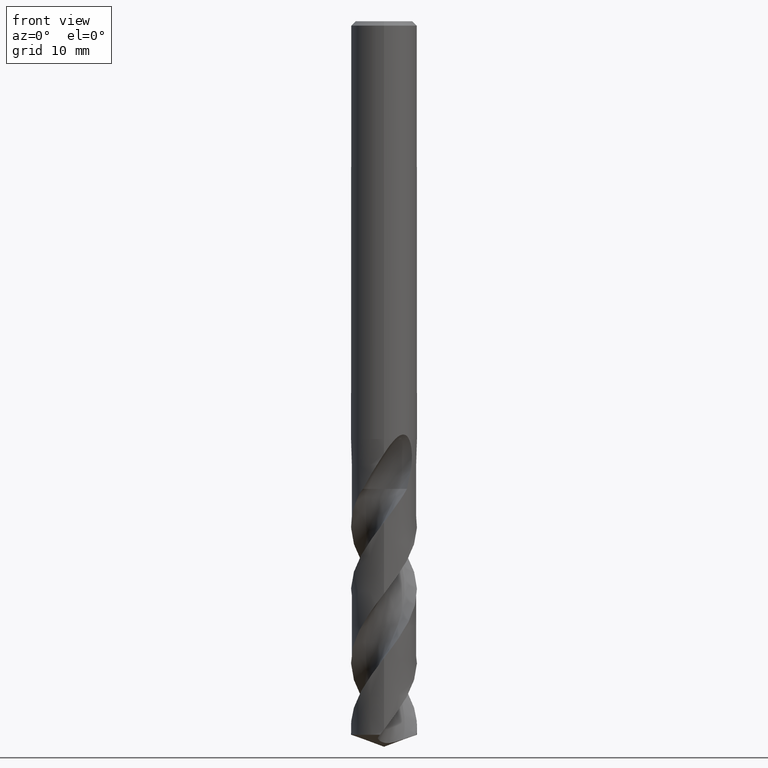
[diagram: clean part render]
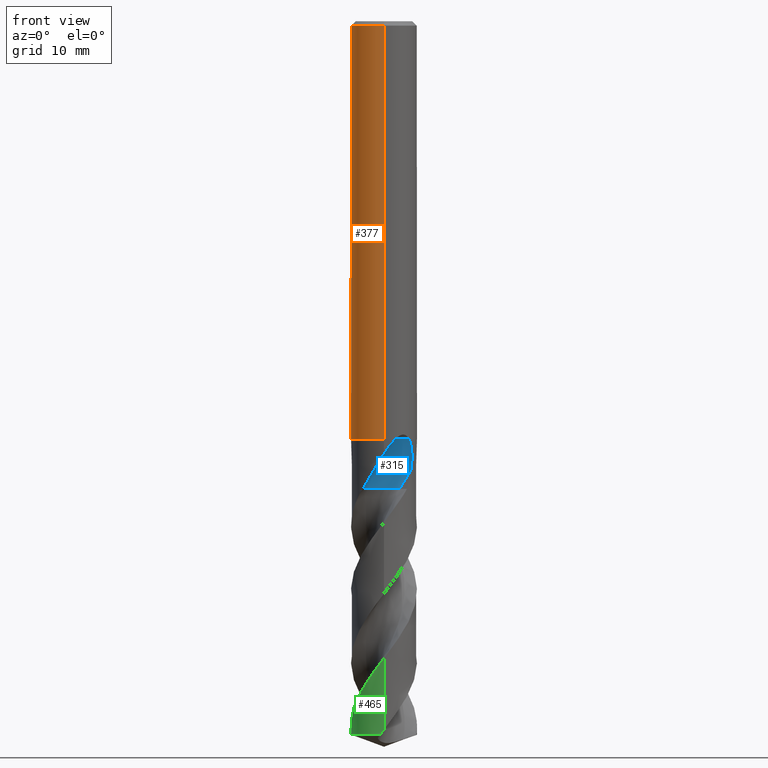
[diagram: same view with three faces highlighted in distinct colors, each labeled with its STEP entity id]
A machine part, front view with three faces highlighted in distinct colors.
Their STEP definitions:

[orange] entity #377 — the highlighted cylindrical surface (edge-blend (fillet) strip) has radius 3 mm, axis along (-0, -0, 1).
#281=VERTEX_POINT('',#742);
#331=VERTEX_POINT('',#798);
#341=VERTEX_POINT('',#809);
#347=VERTEX_POINT('',#815);
#369=EDGE_CURVE('',#547,#281,#837,.T.);
#373=VERTEX_POINT('',#842);
#377=ADVANCED_FACE('',(#846),#847,.T.);
#385=EDGE_CURVE('',#513,#519,#855,.T.);
#389=EDGE_CURVE('',#671,#547,#860,.T.);
#415=VERTEX_POINT('',#888);
#427=VERTEX_POINT('',#901);
#453=EDGE_CURVE('',#415,#519,#929,.T.);
#461=EDGE_CURVE('',#341,#503,#937,.T.);
#503=VERTEX_POINT('',#985);
#505=EDGE_CURVE('',#503,#645,#987,.T.);
#511=EDGE_CURVE('',#281,#373,#993,.T.);
#513=VERTEX_POINT('',#995);
#519=VERTEX_POINT('',#1001);
#521=EDGE_CURVE('',#373,#331,#1003,.T.);
#547=VERTEX_POINT('',#1031);
#553=EDGE_CURVE('',#331,#347,#1038,.T.);
#613=EDGE_CURVE('',#513,#347,#1103,.T.);
#617=EDGE_CURVE('',#415,#655,#1108,.T.);
#629=EDGE_CURVE('',#655,#341,#1121,.T.);
#645=VERTEX_POINT('',#1139);
#655=VERTEX_POINT('',#1149);
#671=VERTEX_POINT('',#1169);
#675=EDGE_CURVE('',#645,#427,#1173,.T.);
#679=EDGE_CURVE('',#427,#671,#1177,.T.);
#742=CARTESIAN_POINT('',(-7.24619892846042E-016,3.0,-32.7128911336578));
#798=CARTESIAN_POINT('',(-2.46407913303377E-016,3.0,-34.0310253601033));
#809=CARTESIAN_POINT('',(0.0,3.0,-0.399999999999999));
#815=CARTESIAN_POINT('',(-3.67381906146713E-016,3.0,-38.0));
#837=LINE('',#2200,#2201);
#842=CARTESIAN_POINT('',(-1.337052752443,2.68557069115386,-33.3720803908795));
#846=FACE_OUTER_BOUND('',#2288,.T.);
#847=CYLINDRICAL_SURFACE('',#2289,3.0);
#855=B_SPLINE_CURVE_WITH_KNOTS('',3,(#2299,#2300,#2301,#2302,#2303,#2304,#2305,#2306,#2307,#2308,#2309,#2310),.UNSPECIFIED.,.F.,.F.,(4,2,2,2,2,4),(0.0,0.566571146386704,0.910751921865405,1.1936802103784,1.47913200193667,1.78513918168509),.UNSPECIFIED.);
#860=B_SPLINE_CURVE_WITH_KNOTS('',3,(#2316,#2317,#2318,#2319,#2320,#2321,#2322,#2323,#2324,#2325,#2326,#2327,#2328,#2329),.UNSPECIFIED.,.F.,.F.,(4,2,2,2,2,2,4),(3.16026050654945,3.61086409539206,4.06146768423468,4.51207127307729,4.95991823802074,5.40776520296419,5.86282890530594),.UNSPECIFIED.);
#888=CARTESIAN_POINT('',(3.67381906146713E-016,-3.0,-38.0));
#901=CARTESIAN_POINT('',(-0.562333990228013,2.94682549253162,-31.3171221986971));
#929=CIRCLE('',#2660,3.0);
#937=LINE('',#2808,#2809);
#985=CARTESIAN_POINT('',(-1.20768269592175E-015,3.0,-32.0232688117743));
#987=B_SPLINE_CURVE_WITH_KNOTS('',3,(#3192,#3193,#3194,#3195,#3196,#3197,#3198,#3199,#3200,#3201,#3202,#3203,#3204,#3205,#3206,#3207,#3208,#3209,#3210,#3211,#3212,#3213,#3214,#3215,#3216,#3217,#3218),.UNSPECIFIED.,.F.,.F.,(4,2,3,2,2,2,2,2,2,2,2,2,4),(-0.54422824842136,-0.27211412421068,0.0,0.272114124210678,0.544228248421357,0.817906359646673,1.09158447087199,1.36255924571499,1.63353402055798,1.90530456554772,2.17707511053746,2.4488456555272,2.72061620051693),.UNSPECIFIED.);
#993=ELLIPSE('',#3229,3.34478529612858,3.0);
#995=CARTESIAN_POINT('',(-1.02400952250009,2.81982348699863,-38.0));
#1001=CARTESIAN_POINT('',(-2.27220909638314,1.95884298051521,-38.0));
#1003=B_SPLINE_CURVE_WITH_KNOTS('',3,(#3240,#3241,#3242,#3243,#3244,#3245,#3246,#3247,#3248,#3249,#3250,#3251,#3252,#3253,#3254,#3255),.UNSPECIFIED.,.F.,.F.,(4,2,2,2,2,2,2,4),(5.66023402257373,6.29060333517104,6.60504483258975,6.91948633000846,7.23392782742717,7.54836932484587,7.86141901111221,8.17446869737855),.UNSPECIFIED.);
#1031=CARTESIAN_POINT('',(-2.06254272401587E-016,3.0,-32.5000801551881));
#1038=LINE('',#3444,#3445);
#1103=CIRCLE('',#4691,3.0);
#1108=LINE('',#4697,#4698);
#1121=CIRCLE('',#4718,3.0);
#1139=CARTESIAN_POINT('',(-0.486378944383045,2.96031003823262,-31.6432837483006));
#1149=CARTESIAN_POINT('',(3.67381906146713E-016,-3.0,-0.399999999999999));
#1169=CARTESIAN_POINT('',(-1.0350734039088,2.81578107254819,-31.3171221986971));
#1173=B_SPLINE_CURVE_WITH_KNOTS('',3,(#4821,#4822,#4823,#4824,#4825,#4826,#4827,#4828,#4829,#4830,#4831,#4832,#4833,#4834,#4835,#4836,#4837,#4838,#4839,#4840,#4841,#4842,#4843,#4844,#4845,#4846,#4847),.UNSPECIFIED.,.F.,.F.,(4,2,3,2,2,2,2,2,2,2,2,2,4),(-0.54422824842136,-0.27211412421068,0.0,0.272114124210678,0.544228248421357,0.817906359646673,1.09158447087199,1.36255924571499,1.63353402055798,1.90530456554772,2.17707511053746,2.4488456555272,2.72061620051693),.UNSPECIFIED.);
#1177=CIRCLE('',#4852,3.0);
#2200=CARTESIAN_POINT('',(-3.67381906146713E-016,3.0,-37.0));
#2201=VECTOR('',#5076,1.0);
#2288=EDGE_LOOP('',(#5087,#5088,#5089,#5090,#5091,#5092,#5093,#5094,#5095,#5096,#5097,#5098,#5099,#5100));
#2289=AXIS2_PLACEMENT_3D('',#5101,#5102,#5103);
#2299=CARTESIAN_POINT('',(-1.02400952250009,2.81982348699863,-38.0));
#2300=CARTESIAN_POINT('',(-1.15466996109985,2.77237458320834,-37.8721585505644));
#2301=CARTESIAN_POINT('',(-1.30089955384538,2.70879676929084,-37.7524070752748));
#2302=CARTESIAN_POINT('',(-1.54419946884866,2.57419682473318,-37.6315133844407));
#2303=CARTESIAN_POINT('',(-1.63831877063901,2.515749009101,-37.602162333192));
#2304=CARTESIAN_POINT('',(-1.80848812215519,2.39545619521912,-37.5952936335916));
#2305=CARTESIAN_POINT('',(-1.88071099267584,2.33896646251829,-37.6096883794318));
#2306=CARTESIAN_POINT('',(-2.01596771167185,2.22347758630175,-37.6734029299133));
#2307=CARTESIAN_POINT('',(-2.07565875844848,2.16729682246501,-37.7214807300166));
#2308=CARTESIAN_POINT('',(-2.18430978789275,2.05794834019253,-37.8436944219673));
#2309=CARTESIAN_POINT('',(-2.2318320178391,2.00567938652924,-37.919016194777));
#2310=CARTESIAN_POINT('',(-2.27220909638314,1.95884298051521,-38.0));
#2316=CARTESIAN_POINT('',(-0.944028754947609,2.84759718180646,-30.87109591768));
#2317=CARTESIAN_POINT('',(-1.00479265183033,2.82745289805341,-31.0168616503562));
#2318=CARTESIAN_POINT('',(-1.03510901790186,2.81576798068631,-31.1761006644519));
#2319=CARTESIAN_POINT('',(-1.03510901790186,2.81576798068631,-31.4765030570137));
#2320=CARTESIAN_POINT('',(-1.00479265183033,2.82745289805341,-31.6357420711094));
#2321=CARTESIAN_POINT('',(-0.88326485806506,2.86774146555976,-31.9272735364618));
#2322=CARTESIAN_POINT('',(-0.792109261194285,2.89554580131596,-32.0596991578702));
#2323=CARTESIAN_POINT('',(-0.582867737485067,2.94478284423827,-32.2682275153448));
#2324=CARTESIAN_POINT('',(-0.450640829386874,2.96956027684007,-32.358826497016));
#2325=CARTESIAN_POINT('',(-0.159819744133953,2.99930375982357,-32.4794282329782));
#2326=CARTESIAN_POINT('',(-0.00114290335869099,3.00371168811663,-32.5093686300866));
#2327=CARTESIAN_POINT('',(0.299461057962613,2.98886806232847,-32.5093686300866));
#2328=CARTESIAN_POINT('',(0.459264276215476,2.96836791045541,-32.4785566268234));
#2329=CARTESIAN_POINT('',(0.604975334200916,2.93836771779988,-32.4175314011172));
#2660=AXIS2_PLACEMENT_3D('',#5192,#5193,#5194);
#2808=CARTESIAN_POINT('',(-3.67381906146713E-016,3.0,-37.0));
#2809=VECTOR('',#5195,1.0);
#3192=CARTESIAN_POINT('',(0.665621182276714,2.92522622060321,-30.8140957881762));
#3193=CARTESIAN_POINT('',(0.728850563417096,2.91083867849353,-30.877518087557));
#3194=CARTESIAN_POINT('',(0.783900459387161,2.89602337967411,-30.9578702196133));
#3195=CARTESIAN_POINT('',(0.857188692916628,2.87518328740958,-31.1345580124299));
#3196=CARTESIAN_POINT('',(0.875400981188567,2.86943777108584,-31.2309373045166));
#3197=CARTESIAN_POINT('',(0.875400981188567,2.86943777108584,-31.3216420125868));
#3198=CARTESIAN_POINT('',(0.875400981188567,2.86943777108584,-31.412346720657));
#3199=CARTESIAN_POINT('',(0.857188692916629,2.87518328740958,-31.5087260127437));
#3200=CARTESIAN_POINT('',(0.783900459387161,2.89602337967411,-31.6854138055602));
#3201=CARTESIAN_POINT('',(0.728850563417096,2.91083867849353,-31.7657659376165));
#3202=CARTESIAN_POINT('',(0.60202838769231,2.93969645569731,-31.8929750586276));
#3203=CARTESIAN_POINT('',(0.5214778595293,2.95568533572518,-31.9483797636259));
#3204=CARTESIAN_POINT('',(0.34429909105015,2.98152194310932,-32.0221641076746));
#3205=CARTESIAN_POINT('',(0.247628172090375,2.99115403786358,-32.0405166027747));
#3206=CARTESIAN_POINT('',(0.0663244946631877,3.00062654348629,-32.0405166027747));
#3207=CARTESIAN_POINT('',(-0.0299285908853379,3.00115720326599,-32.0224875186921));
#3208=CARTESIAN_POINT('',(-0.206881310600538,2.99416773126077,-31.949244373347));
#3209=CARTESIAN_POINT('',(-0.287593937381961,2.98687212067831,-31.8940404490632));
#3210=CARTESIAN_POINT('',(-0.415200117492864,2.97182576996222,-31.7666805419979));
#3211=CARTESIAN_POINT('',(-0.470604049431396,2.96309385107775,-31.6859121102136));
#3212=CARTESIAN_POINT('',(-0.544183869965539,2.95046729924835,-31.5086992019516));
#3213=CARTESIAN_POINT('',(-0.562348199187247,2.94682278104247,-31.41223219425));
#3214=CARTESIAN_POINT('',(-0.562348199187247,2.94682278104247,-31.2310518309235));
#3215=CARTESIAN_POINT('',(-0.54418386996554,2.95046729924835,-31.134584823222));
#3216=CARTESIAN_POINT('',(-0.4706040494314,2.96309385107775,-30.95737191496));
#3217=CARTESIAN_POINT('',(-0.415200117492863,2.97182576996222,-30.8766034831756));
#3218=CARTESIAN_POINT('',(-0.351303479704285,2.97935997575782,-30.812830162452));
#3229=AXIS2_PLACEMENT_3D('',#5269,#5270,#5271);
#3240=CARTESIAN_POINT('',(-1.53050642192579,2.58022287650581,-33.0319811255889));
#3241=CARTESIAN_POINT('',(-1.44691631248335,2.62980577312329,-33.2314887010961));
#3242=CARTESIAN_POINT('',(-1.32276760444366,2.69707077181617,-33.4113258593841));
#3243=CARTESIAN_POINT('',(-1.10973155101076,2.78826898930335,-33.6245951706909));
#3244=CARTESIAN_POINT('',(-1.02948996220254,2.81934349084513,-33.6916117853674));
#3245=CARTESIAN_POINT('',(-0.853932698223484,2.87738531454781,-33.8105216600777));
#3246=CARTESIAN_POINT('',(-0.758609991487907,2.90431263574779,-33.8624240602539));
#3247=CARTESIAN_POINT('',(-0.558469552260235,2.94934446690523,-33.9464055954533));
#3248=CARTESIAN_POINT('',(-0.453457041446381,2.96746268462387,-33.9785511641911));
#3249=CARTESIAN_POINT('',(-0.240810292537893,2.99223469602914,-34.0209924679526));
#3250=CARTESIAN_POINT('',(-0.133171317626829,2.99887501234033,-34.0312723335086));
#3251=CARTESIAN_POINT('',(0.0759830626177195,3.00085245803086,-34.0312723335086));
#3252=CARTESIAN_POINT('',(0.183273473896684,2.99629272230549,-34.0210815541729));
#3253=CARTESIAN_POINT('',(0.39543915272815,2.97573303917486,-33.9788816901513));
#3254=CARTESIAN_POINT('',(0.500318639064909,2.95974677710468,-33.9468871509919));
#3255=CARTESIAN_POINT('',(0.600330982089903,2.93932011049205,-33.9050368602192));
#3444=CARTESIAN_POINT('',(-3.67381906146713E-016,3.0,-37.0));
#3445=VECTOR('',#5302,1.0);
#4691=AXIS2_PLACEMENT_3D('',#5361,#5362,#5363);
#4697=CARTESIAN_POINT('',(3.67381906146713E-016,-3.0,-37.0));
#4698=VECTOR('',#5372,1.0);
#4718=AXIS2_PLACEMENT_3D('',#5386,#5387,#5388);
#4821=CARTESIAN_POINT('',(0.665621182276714,2.92522622060321,-30.8140957881762));
#4822=CARTESIAN_POINT('',(0.728850563417096,2.91083867849353,-30.877518087557));
#4823=CARTESIAN_POINT('',(0.783900459387161,2.89602337967411,-30.9578702196133));
#4824=CARTESIAN_POINT('',(0.857188692916628,2.87518328740958,-31.1345580124299));
#4825=CARTESIAN_POINT('',(0.875400981188567,2.86943777108584,-31.2309373045166));
#4826=CARTESIAN_POINT('',(0.875400981188567,2.86943777108584,-31.3216420125868));
#4827=CARTESIAN_POINT('',(0.875400981188567,2.86943777108584,-31.412346720657));
#4828=CARTESIAN_POINT('',(0.857188692916629,2.87518328740958,-31.5087260127437));
#4829=CARTESIAN_POINT('',(0.783900459387161,2.89602337967411,-31.6854138055602));
#4830=CARTESIAN_POINT('',(0.728850563417096,2.91083867849353,-31.7657659376165));
#4831=CARTESIAN_POINT('',(0.60202838769231,2.93969645569731,-31.8929750586276));
#4832=CARTESIAN_POINT('',(0.5214778595293,2.95568533572518,-31.9483797636259));
#4833=CARTESIAN_POINT('',(0.34429909105015,2.98152194310932,-32.0221641076746));
#4834=CARTESIAN_POINT('',(0.247628172090375,2.99115403786358,-32.0405166027747));
#4835=CARTESIAN_POINT('',(0.0663244946631877,3.00062654348629,-32.0405166027747));
#4836=CARTESIAN_POINT('',(-0.0299285908853379,3.00115720326599,-32.0224875186921));
#4837=CARTESIAN_POINT('',(-0.206881310600538,2.99416773126077,-31.949244373347));
#4838=CARTESIAN_POINT('',(-0.287593937381961,2.98687212067831,-31.8940404490632));
#4839=CARTESIAN_POINT('',(-0.415200117492864,2.97182576996222,-31.7666805419979));
#4840=CARTESIAN_POINT('',(-0.470604049431396,2.96309385107775,-31.6859121102136));
#4841=CARTESIAN_POINT('',(-0.544183869965539,2.95046729924835,-31.5086992019516));
#4842=CARTESIAN_POINT('',(-0.562348199187247,2.94682278104247,-31.41223219425));
#4843=CARTESIAN_POINT('',(-0.562348199187247,2.94682278104247,-31.2310518309235));
#4844=CARTESIAN_POINT('',(-0.54418386996554,2.95046729924835,-31.134584823222));
#4845=CARTESIAN_POINT('',(-0.4706040494314,2.96309385107775,-30.95737191496));
#4846=CARTESIAN_POINT('',(-0.415200117492863,2.97182576996222,-30.8766034831756));
#4847=CARTESIAN_POINT('',(-0.351303479704285,2.97935997575782,-30.812830162452));
#4852=AXIS2_PLACEMENT_3D('',#5479,#5480,#5481);
#5076=DIRECTION('',(0.0,0.0,-1.0));
#5087=ORIENTED_EDGE('',*,*,#461,.T.);
#5088=ORIENTED_EDGE('',*,*,#505,.T.);
#5089=ORIENTED_EDGE('',*,*,#675,.T.);
#5090=ORIENTED_EDGE('',*,*,#679,.T.);
#5091=ORIENTED_EDGE('',*,*,#389,.T.);
#5092=ORIENTED_EDGE('',*,*,#369,.T.);
#5093=ORIENTED_EDGE('',*,*,#511,.T.);
#5094=ORIENTED_EDGE('',*,*,#521,.T.);
#5095=ORIENTED_EDGE('',*,*,#553,.T.);
#5096=ORIENTED_EDGE('',*,*,#613,.F.);
#5097=ORIENTED_EDGE('',*,*,#385,.T.);
#5098=ORIENTED_EDGE('',*,*,#453,.F.);
#5099=ORIENTED_EDGE('',*,*,#617,.T.);
#5100=ORIENTED_EDGE('',*,*,#629,.T.);
#5101=CARTESIAN_POINT('',(0.0,0.0,-37.0));
#5102=DIRECTION('',(-0.0,-0.0,1.0));
#5103=DIRECTION('',(0.0,1.0,0.0));
#5192=CARTESIAN_POINT('',(0.0,0.0,-38.0));
#5193=DIRECTION('',(0.0,0.0,-1.0));
#5194=DIRECTION('',(0.0,1.0,0.0));
#5195=DIRECTION('',(0.0,0.0,-1.0));
#5269=CARTESIAN_POINT('',(0.0,0.0,-32.7128911336578));
#5270=DIRECTION('',(-0.442195774284071,0.0,0.896918556617774));
#5271=DIRECTION('',(0.896918556617774,-0.0,0.442195774284071));
#5302=DIRECTION('',(0.0,0.0,-1.0));
#5361=CARTESIAN_POINT('',(0.0,0.0,-38.0));
#5362=DIRECTION('',(0.0,0.0,-1.0));
#5363=DIRECTION('',(0.0,1.0,0.0));
#5372=DIRECTION('',(-0.0,-0.0,1.0));
#5386=CARTESIAN_POINT('',(0.0,0.0,-0.399999999999999));
#5387=DIRECTION('',(0.0,0.0,-1.0));
#5388=DIRECTION('',(0.0,1.0,0.0));
#5479=CARTESIAN_POINT('',(0.0,0.0,-31.3171221986971));
#5480=DIRECTION('',(0.0,-0.0,1.0));
#5481=DIRECTION('',(0.0,1.0,0.0));

[blue] entity #315 — the highlighted face is a SurfaceOfRevolution surface.
#255=VERTEX_POINT('',#714);
#283=EDGE_CURVE('',#339,#677,#744,.T.);
#289=EDGE_CURVE('',#343,#665,#750,.T.);
#315=ADVANCED_FACE('',(#778),#779,.F.);
#317=VERTEX_POINT('',#781);
#339=VERTEX_POINT('',#807);
#343=VERTEX_POINT('',#811);
#351=VERTEX_POINT('',#819);
#355=EDGE_CURVE('',#255,#339,#823,.T.);
#361=EDGE_CURVE('',#677,#317,#829,.T.);
#423=EDGE_CURVE('',#317,#665,#897,.T.);
#491=EDGE_CURVE('',#351,#343,#972,.T.);
#499=EDGE_CURVE('',#255,#351,#980,.T.);
#665=VERTEX_POINT('',#1162);
#677=VERTEX_POINT('',#1175);
#714=CARTESIAN_POINT('',(-1.911620345301,-2.31197078660974,-42.541));
#744=B_SPLINE_CURVE_WITH_KNOTS('',3,(#1329,#1330,#1331,#1332,#1333,#1334,#1335,#1336,#1337,#1338,#1339,#1340,#1341,#1342),.UNSPECIFIED.,.F.,.F.,(4,2,2,2,2,2,4),(0.0,1.46984077473012,2.27240001141742,2.99930618988748,3.84377884992006,4.85817165914408,5.38253834136402),.UNSPECIFIED.);
#750=CIRCLE('',#1352,13.0357797004233);
#778=FACE_OUTER_BOUND('',#1509,.T.);
#779=SURFACE_OF_REVOLUTION('',#1510,#1511);
#781=CARTESIAN_POINT('',(2.27206572632338,-1.95885613184496,-38.0));
#807=CARTESIAN_POINT('',(8.9080476270343E-013,-2.99990502479152,-39.3520753885589));
#811=CARTESIAN_POINT('',(1.41421356230238,-1.48578643769762,-42.541));
#819=CARTESIAN_POINT('',(0.222706862290609,-0.912425706777261,-42.541));
#823=B_SPLINE_CURVE_WITH_KNOTS('',3,(#2156,#2157,#2158,#2159,#2160,#2161,#2162,#2163,#2164,#2165,#2166,#2167,#2168,#2169),.UNSPECIFIED.,.F.,.F.,(4,2,2,2,2,2,4),(0.0,1.46984077473012,2.27240001141742,2.99930618988748,3.84377884992006,4.85817165914408,5.38253834136402),.UNSPECIFIED.);
#829=B_SPLINE_CURVE_WITH_KNOTS('',3,(#2176,#2177,#2178,#2179,#2180,#2181,#2182,#2183,#2184,#2185,#2186,#2187),.UNSPECIFIED.,.F.,.F.,(4,2,2,2,2,4),(0.0,0.654406929016871,1.25104256480515,1.85055315832275,2.23709525534792,2.64083528858207),.UNSPECIFIED.);
#897=B_SPLINE_CURVE_WITH_KNOTS('',3,(#2510,#2511,#2512,#2513,#2514,#2515,#2516,#2517),.UNSPECIFIED.,.F.,.F.,(4,2,2,4),(0.0,0.560998860743628,1.34596583268392,2.09615648026801),.UNSPECIFIED.);
#972=CIRCLE('',#3172,2.0);
#980=CIRCLE('',#3184,2.0);
#1162=CARTESIAN_POINT('',(2.44084107710284,-1.74406406794348,-40.8983959763193));
#1175=CARTESIAN_POINT('',(1.02407252913775,-2.81969421481575,-38.0));
#1329=CARTESIAN_POINT('',(-1.911620345301,-2.31197078660975,-42.541));
#1330=CARTESIAN_POINT('',(-1.71373461052247,-2.47558779541369,-42.1237246716735));
#1331=CARTESIAN_POINT('',(-1.48620824768746,-2.62103400592475,-41.7346895015382));
#1332=CARTESIAN_POINT('',(-1.08946823456593,-2.79930803181119,-41.0847853463982));
#1333=CARTESIAN_POINT('',(-0.946702654499,-2.85059060657398,-40.856128865703));
#1334=CARTESIAN_POINT('',(-0.67032748476283,-2.92723336299864,-40.4135137611211));
#1335=CARTESIAN_POINT('',(-0.537951726910613,-2.95431092320991,-40.2016176750608));
#1336=CARTESIAN_POINT('',(-0.251416200314465,-2.99338967792196,-39.7449315794096));
#1337=CARTESIAN_POINT('',(-0.0948625817679001,-3.00256410516828,-39.4965665776857));
#1338=CARTESIAN_POINT('',(0.252801776441655,-2.99525011880762,-38.9652361451713));
#1339=CARTESIAN_POINT('',(0.458930734569506,-2.97263083676272,-38.6629061130183));
#1340=CARTESIAN_POINT('',(0.781940570164031,-2.89840138404733,-38.25779918468));
#1341=CARTESIAN_POINT('',(0.900655435053609,-2.86451801205425,-38.1207389968089));
#1342=CARTESIAN_POINT('',(1.02407252913775,-2.81969421481575,-38.0));
#1352=AXIS2_PLACEMENT_3D('',#4982,#4983,#4984);
#1509=EDGE_LOOP('',(#5007,#5008,#5009,#5010,#5011,#5012,#5013));
#1510=(B_SPLINE_CURVE(3,(#5015,#5016,#5017,#5018,#5019,#5020,#5021,#5022,#5023),.UNSPECIFIED.,.F.,.F.)B_SPLINE_CURVE_WITH_KNOTS((4,1,3,1,4),(-2.8563795760567,-2.55359659292047,-2.25081360978424,-1.94803062664801,-1.64524764351178),.UNSPECIFIED.)RATIONAL_B_SPLINE_CURVE((1.09167753487688,1.03055917829229,0.969440821707708,1.03055917829229,1.09167753487688,1.03055917829229,0.969440821707708,1.03055917829229,1.09167753487688))BOUNDED_CURVE()REPRESENTATION_ITEM('')GEOMETRIC_REPRESENTATION_ITEM()CURVE());
#1511=AXIS1_PLACEMENT('',#5030,#5031);
#2156=CARTESIAN_POINT('',(-1.911620345301,-2.31197078660975,-42.541));
#2157=CARTESIAN_POINT('',(-1.71373461052247,-2.47558779541369,-42.1237246716735));
#2158=CARTESIAN_POINT('',(-1.48620824768746,-2.62103400592475,-41.7346895015382));
#2159=CARTESIAN_POINT('',(-1.08946823456593,-2.79930803181119,-41.0847853463982));
#2160=CARTESIAN_POINT('',(-0.946702654499,-2.85059060657398,-40.856128865703));
#2161=CARTESIAN_POINT('',(-0.67032748476283,-2.92723336299864,-40.4135137611211));
#2162=CARTESIAN_POINT('',(-0.537951726910613,-2.95431092320991,-40.2016176750608));
#2163=CARTESIAN_POINT('',(-0.251416200314465,-2.99338967792196,-39.7449315794096));
#2164=CARTESIAN_POINT('',(-0.0948625817679001,-3.00256410516828,-39.4965665776857));
#2165=CARTESIAN_POINT('',(0.252801776441655,-2.99525011880762,-38.9652361451713));
#2166=CARTESIAN_POINT('',(0.458930734569506,-2.97263083676272,-38.6629061130183));
#2167=CARTESIAN_POINT('',(0.781940570164031,-2.89840138404733,-38.25779918468));
#2168=CARTESIAN_POINT('',(0.900655435053609,-2.86451801205425,-38.1207389968089));
#2169=CARTESIAN_POINT('',(1.02407252913775,-2.81969421481575,-38.0));
#2176=CARTESIAN_POINT('',(0.931774831504153,-3.0499,-38.0));
#2177=CARTESIAN_POINT('',(0.998519458196376,-2.84222642547211,-38.0));
#2178=CARTESIAN_POINT('',(1.10173213189737,-2.64967181361699,-37.9999999999907));
#2179=CARTESIAN_POINT('',(1.37166582742442,-2.33302607926299,-37.9999999999907));
#2180=CARTESIAN_POINT('',(1.52735593364049,-2.20998135893307,-38.0000000000005));
#2181=CARTESIAN_POINT('',(1.88198932111974,-2.03010809477492,-38.0000000000005));
#2182=CARTESIAN_POINT('',(2.07476835428261,-1.9767944436065,-38.0000000000001));
#2183=CARTESIAN_POINT('',(2.40158904884976,-1.94707885840042,-38.0000000000001));
#2184=CARTESIAN_POINT('',(2.5305631419491,-1.95021991356857,-38.0));
#2185=CARTESIAN_POINT('',(2.79155213698914,-1.98375837424461,-38.0));
#2186=CARTESIAN_POINT('',(2.92273417141628,-2.01526102067719,-38.0));
#2187=CARTESIAN_POINT('',(3.0499,-2.05906285740472,-38.0));
#2510=CARTESIAN_POINT('',(2.27206572632338,-1.95885613184496,-38.0));
#2511=CARTESIAN_POINT('',(2.34618068798084,-1.87289146879062,-38.1486132804877));
#2512=CARTESIAN_POINT('',(2.40464113703118,-1.79523227409004,-38.3333607605238));
#2513=CARTESIAN_POINT('',(2.50976637266457,-1.64673923056007,-38.8423155199794));
#2514=CARTESIAN_POINT('',(2.5447516044029,-1.58861230012344,-39.2021858727661));
#2515=CARTESIAN_POINT('',(2.54970305318513,-1.58065798526515,-39.9891050124465));
#2516=CARTESIAN_POINT('',(2.52454420465138,-1.62691737399269,-40.4223243050218));
#2517=CARTESIAN_POINT('',(2.44084107710284,-1.74406406794348,-40.8983959763193));
#3172=AXIS2_PLACEMENT_3D('',#5249,#5250,#5251);
#3184=AXIS2_PLACEMENT_3D('',#5256,#5257,#5258);
#4982=CARTESIAN_POINT('',(1.01696256165565,-14.5,-43.1766016010348));
#4983=DIRECTION('',(0.847998304005088,0.0,-0.52999894000318));
#4984=DIRECTION('',(0.0535598122533608,0.994880693138896,0.0856956996053773));
#5007=ORIENTED_EDGE('',*,*,#423,.F.);
#5008=ORIENTED_EDGE('',*,*,#361,.F.);
#5009=ORIENTED_EDGE('',*,*,#283,.F.);
#5010=ORIENTED_EDGE('',*,*,#355,.F.);
#5011=ORIENTED_EDGE('',*,*,#499,.T.);
#5012=ORIENTED_EDGE('',*,*,#491,.T.);
#5013=ORIENTED_EDGE('',*,*,#289,.T.);
#5015=CARTESIAN_POINT('',(1.41421356230238,-1.48578643769762,-42.541));
#5016=CARTESIAN_POINT('',(1.13721473926407,-1.20878207462721,-42.541));
#5017=CARTESIAN_POINT('',(0.416939188007717,-0.815181728572722,-42.541));
#5018=CARTESIAN_POINT('',(-0.399314703416378,-0.901481710536098,-42.541));
#5019=CARTESIAN_POINT('',(-0.761545032999206,-1.05064254136969,-42.541));
#5020=CARTESIAN_POINT('',(-1.12377536258203,-1.19980337220328,-42.541));
#5021=CARTESIAN_POINT('',(-1.76411399682268,-1.713305597759,-42.541));
#5022=CARTESIAN_POINT('',(-1.9983751070284,-2.49996933430533,-42.541));
#5023=CARTESIAN_POINT('',(-1.99999700051123,-2.89170538649632,-42.541));
#5030=CARTESIAN_POINT('',(1.01696256165565,-14.5,-43.1766016010348));
#5031=DIRECTION('',(-0.847998304005088,0.0,0.52999894000318));
#5249=CARTESIAN_POINT('',(-1.41421362090924E-005,-2.89998585786379,-42.541));
#5250=DIRECTION('',(-0.0,0.0,-1.0));
#5251=DIRECTION('',(-0.707099710083089,-0.707113852219296,0.0));
#5256=CARTESIAN_POINT('',(-1.41421362090924E-005,-2.89998585786379,-42.541));
#5257=DIRECTION('',(-0.0,0.0,-1.0));
#5258=DIRECTION('',(-0.707099710083089,-0.707113852219296,0.0));

[green] entity #465 — the highlighted conical surface has half-angle 0 deg.
#273=VERTEX_POINT('',#733);
#409=EDGE_CURVE('',#563,#419,#882,.T.);
#419=VERTEX_POINT('',#893);
#465=ADVANCED_FACE('',(#942),#943,.T.);
#563=VERTEX_POINT('',#1048);
#605=EDGE_CURVE('',#633,#563,#1095,.T.);
#607=EDGE_CURVE('',#273,#633,#1097,.T.);
#625=EDGE_CURVE('',#273,#419,#1117,.T.);
#633=VERTEX_POINT('',#1126);
#733=CARTESIAN_POINT('',(-0.355715429172628,-2.9788364395261,-64.9080892972014));
#882=B_SPLINE_CURVE_WITH_KNOTS('',3,(#2405,#2406,#2407,#2408,#2409,#2410,#2411,#2412,#2413,#2414,#2415,#2416,#2417,#2418,#2419,#2420,#2421,#2422,#2423,#2424,#2425,#2426,#2427,#2428,#2429,#2430,#2431,#2432,#2433,#2434,#2435,#2436,#2437,#2438,#2439,#2440,#2441,#2442,#2443,#2444,#2445,#2446,#2447,#2448,#2449,#2450,#2451,#2452,#2453,#2454,#2455,#2456,#2457,#2458,#2459,#2460,#2461,#2462,#2463,#2464,#2465,#2466,#2467,#2468,#2469,#2470,#2471,#2472,#2473,#2474,#2475,#2476,#2477,#2478,#2479,#2480,#2481,#2482,#2483,#2484,#2485,#2486,#2487,#2488,#2489,#2490),.UNSPECIFIED.,.F.,.F.,(4,2,2,2,2,2,2,2,2,2,2,2,2,2,2,2,2,2,2,2,2,2,2,2,2,2,2,2,2,2,2,2,2,2,2,2,2,2,2,2,2,2,4),(0.0,0.0993043887441413,0.133810008387311,0.19875973419258,0.516186499791345,0.627581815699314,0.698954258055705,0.766036610285534,0.856023578001311,0.957565004589792,1.34121247332067,1.63577952423167,1.92231758391599,3.79579281086018,5.15351207479278,5.91578548438182,6.68924615957647,7.0778026000069,7.44370026183563,8.79859769953786,9.56043304916776,10.334303010451,10.722547040767,11.0750210554367,12.4456948230835,13.2055523271139,13.9797061753053,14.7546070013301,16.248140394467,16.4087687387711,17.6175892151401,18.3915076495586,19.9131642399385,19.9630805624377,21.5787148504903,21.9328011398441,23.2883160517244,23.82482131561,24.7699011402327,25.1262022562947,25.74725366326,26.682903737321,27.6207702811037),.UNSPECIFIED.);
#893=CARTESIAN_POINT('',(-2.93752141660917,0.609071364424933,-64.9080892972014));
#942=FACE_OUTER_BOUND('',#3029,.T.);
#943=CONICAL_SURFACE('',#3030,2.99995,3.71635454659173E-006);
#1048=CARTESIAN_POINT('',(7.67892452749256E-014,-2.99997405367528,-57.9264290689532));
#1095=LINE('',#4517,#4518);
#1097=B_SPLINE_CURVE_WITH_KNOTS('',3,(#4521,#4522,#4523,#4524,#4525,#4526,#4527,#4528,#4529,#4530,#4531,#4532,#4533,#4534,#4535,#4536,#4537,#4538,#4539,#4540,#4541,#4542,#4543,#4544,#4545,#4546,#4547,#4548,#4549,#4550,#4551,#4552,#4553,#4554,#4555,#4556,#4557,#4558,#4559,#4560,#4561,#4562,#4563,#4564,#4565,#4566,#4567,#4568,#4569,#4570,#4571,#4572,#4573,#4574,#4575,#4576,#4577,#4578,#4579,#4580,#4581,#4582,#4583,#4584,#4585,#4586,#4587,#4588,#4589,#4590,#4591,#4592,#4593,#4594,#4595,#4596,#4597,#4598),.UNSPECIFIED.,.F.,.F.,(4,2,2,2,2,2,2,2,2,2,2,2,2,2,2,2,2,2,2,2,2,2,2,2,2,2,2,2,2,2,2,2,2,2,2,2,2,2,4),(0.0,1.23059924655682,2.02254365978266,2.67546675013787,4.09672309281977,4.23628684170138,5.82683231080691,6.40497396932268,7.7780971232686,7.91502262102418,9.56634867584959,9.84450809760665,11.4877244125659,11.7588414902893,12.7161352533293,14.2986067348676,14.6949156205662,15.0909319410027,15.3754837649199,16.3954347117206,17.9810827844486,18.775295996233,19.0876322308449,20.7361804770694,21.0272979112307,21.9214296343886,22.3289625019878,22.8510941545953,23.9200888969688,25.9406615469451,26.9115240964356,27.1455289730991,27.3349046962176,27.3480828556262,27.3851173335871,27.4197117932668,27.4661691389348,27.5641030622429,27.6768723497246),.UNSPECIFIED.);
#1117=CIRCLE('',#4713,3.0);
#1126=CARTESIAN_POINT('',(2.94155772633937E-010,-2.99999825594697,-64.4387979511909));
#2405=CARTESIAN_POINT('',(-2.08517324191318,2.15674611716699,-42.541));
#2406=CARTESIAN_POINT('',(-2.07136622497182,2.17009507958107,-42.5679606812366));
#2407=CARTESIAN_POINT('',(-2.05740259257028,2.18333927545789,-42.5949154120565));
#2408=CARTESIAN_POINT('',(-2.03833917111421,2.20107286913151,-42.6311909795193));
#2409=CARTESIAN_POINT('',(-2.03340277731674,2.20563413544074,-42.6405382927579));
#2410=CARTESIAN_POINT('',(-2.01910848589143,2.21875315139186,-42.6674653881605));
#2411=CARTESIAN_POINT('',(-2.0097010319021,2.22727830385861,-42.6850155386959));
#2412=CARTESIAN_POINT('',(-1.95378549007078,2.27730283005683,-42.7882461820849));
#2413=CARTESIAN_POINT('',(-1.90635411280117,2.3172057810499,-42.8713793677206));
#2414=CARTESIAN_POINT('',(-1.83822770163947,2.37085163382477,-42.9848535199135));
#2415=CARTESIAN_POINT('',(-1.82032176088154,2.38462923818041,-43.014178125839));
#2416=CARTESIAN_POINT('',(-1.79052361568639,2.4070209668116,-43.0622690561829));
#2417=CARTESIAN_POINT('',(-1.77880463191766,2.4156947095079,-43.0810074906507));
#2418=CARTESIAN_POINT('',(-1.75589609281312,2.43239217014877,-43.1173442911715));
#2419=CARTESIAN_POINT('',(-1.74473015812961,2.44041404130046,-43.1349227228801));
#2420=CARTESIAN_POINT('',(-1.71842340568761,2.45903994309474,-43.1760792103234));
#2421=CARTESIAN_POINT('',(-1.70324884981625,2.46957499825191,-43.1996222751782));
#2422=CARTESIAN_POINT('',(-1.67074007455644,2.49170209500316,-43.2497692211999));
#2423=CARTESIAN_POINT('',(-1.65322053102019,2.50336342606553,-43.2766101032217));
#2424=CARTESIAN_POINT('',(-1.56835025278579,2.55855548198344,-43.406507760237));
#2425=CARTESIAN_POINT('',(-1.49994250668987,2.59921712978338,-43.5104160076286));
#2426=CARTESIAN_POINT('',(-1.37725301049174,2.66577876398308,-43.6937516395854));
#2427=CARTESIAN_POINT('',(-1.32314093694221,2.69304524639987,-43.773626246013));
#2428=CARTESIAN_POINT('',(-1.21489751521587,2.74354242813831,-43.9309339991579));
#2429=CARTESIAN_POINT('',(-1.16079138290156,2.76687192380442,-44.0083125399118));
#2430=CARTESIAN_POINT('',(-0.747244994363558,2.93088111442894,-44.5918968115278));
#2431=CARTESIAN_POINT('',(-0.3644009090222,3.00262113107736,-45.092128263492));
#2432=CARTESIAN_POINT('',(0.301246029671788,2.99784322046405,-45.9653638468197));
#2433=CARTESIAN_POINT('',(0.579475783722239,2.95672109559812,-46.3309179522655));
#2434=CARTESIAN_POINT('',(0.998861323630267,2.83312355116412,-46.9035739799059));
#2435=CARTESIAN_POINT('',(1.14584500423862,2.77692319229918,-47.1091620616985));
#2436=CARTESIAN_POINT('',(1.43159338027238,2.64112513571113,-47.5242854366705));
#2437=CARTESIAN_POINT('',(1.56989101175786,2.5613454514061,-47.7330759775173));
#2438=CARTESIAN_POINT('',(1.7672263072663,2.42547999701219,-48.0470373532243));
#2439=CARTESIAN_POINT('',(1.83137336359565,2.37741861206257,-48.1519462719796));
#2440=CARTESIAN_POINT('',(1.95205619070994,2.27921077256324,-48.3557577559169));
#2441=CARTESIAN_POINT('',(2.00874308298578,2.22941053268712,-48.4545294031668));
#2442=CARTESIAN_POINT('',(2.26617701654527,1.98546310586825,-48.9196403096793));
#2443=CARTESIAN_POINT('',(2.44116897129422,1.76591526332795,-49.284548397453));
#2444=CARTESIAN_POINT('',(2.66316629084895,1.38993000321392,-49.8564912709822));
#2445=CARTESIAN_POINT('',(2.73226588505613,1.24861323755207,-50.0620603133426));
#2446=CARTESIAN_POINT('',(2.84857425879499,0.954322034470685,-50.4772804014396));
#2447=CARTESIAN_POINT('',(2.89529284560393,0.801520329797592,-50.6862116240952));
#2448=CARTESIAN_POINT('',(2.94687706542596,0.567465207542658,-51.0002656327534));
#2449=CARTESIAN_POINT('',(2.96097485506727,0.488604337509555,-51.1051120145243));
#2450=CARTESIAN_POINT('',(2.98182078776121,0.337235965679544,-51.3052598245508));
#2451=CARTESIAN_POINT('',(2.98911454344363,0.264901141824341,-51.400441631044));
#2452=CARTESIAN_POINT('',(3.01189676496985,-0.0895850197365274,-51.8663035811155));
#2453=CARTESIAN_POINT('',(2.99009466498851,-0.372866281199884,-52.2354648499648));
#2454=CARTESIAN_POINT('',(2.89500312918145,-0.802038819538377,-52.811262399091));
#2455=CARTESIAN_POINT('',(2.84916041949854,-0.952126958924334,-53.0163836396108));
#2456=CARTESIAN_POINT('',(2.73345843605559,-1.24635734910718,-53.4312328007473));
#2457=CARTESIAN_POINT('',(2.66328883547393,-1.3900162527686,-53.6402680968021));
#2458=CARTESIAN_POINT('',(2.50058612199237,-1.66504661425172,-54.0589700396607));
#2459=CARTESIAN_POINT('',(2.40836274095189,-1.7958486986956,-54.2678025257853));
#2460=CARTESIAN_POINT('',(2.10926901181603,-2.15535754932747,-54.8812438088252));
#2461=CARTESIAN_POINT('',(1.8769651686547,-2.36045686819544,-55.2828604055631));
#2462=CARTESIAN_POINT('',(1.58950661867909,-2.54447687199146,-55.7299828851253));
#2463=CARTESIAN_POINT('',(1.56130643444183,-2.56187749785714,-55.7733909058353));
#2464=CARTESIAN_POINT('',(1.31848734291316,-2.70620911334303,-56.1436931657254));
#2465=CARTESIAN_POINT('',(1.08901600935308,-2.80643718847951,-56.4700054034163));
#2466=CARTESIAN_POINT('',(0.696593133140715,-2.92234336674466,-57.0061279874353));
#2467=CARTESIAN_POINT('',(0.540116032932974,-2.95526268004427,-57.2147883617457));
#2468=CARTESIAN_POINT('',(0.0705444832622694,-3.01551744286262,-57.8358187427557));
#2469=CARTESIAN_POINT('',(-0.245224145617677,-3.00638645372549,-58.2449584766239));
#2470=CARTESIAN_POINT('',(-0.564025156306016,-2.94649667803179,-58.6699221094161));
#2471=CARTESIAN_POINT('',(-0.574139639803126,-2.94454258242854,-58.6834184082372));
#2472=CARTESIAN_POINT('',(-0.911323422026419,-2.87759594179303,-59.1338928861289));
#2473=CARTESIAN_POINT('',(-1.22546102919602,-2.75852002859959,-59.5689629959356));
#2474=CARTESIAN_POINT('',(-1.57664807123985,-2.55331548787635,-60.1017584124008));
#2475=CARTESIAN_POINT('',(-1.63838236859779,-2.5141474471133,-60.1974753057206));
#2476=CARTESIAN_POINT('',(-1.92918039998175,-2.31439305090713,-60.6601608511205));
#2477=CARTESIAN_POINT('',(-2.13659542543747,-2.12444415497436,-61.0256691611291));
#2478=CARTESIAN_POINT('',(-2.38519911566938,-1.82291799007863,-61.5375350349187));
#2479=CARTESIAN_POINT('',(-2.45086540986865,-1.73362201006938,-61.6824966164634));
#2480=CARTESIAN_POINT('',(-2.61810750423041,-1.47766326903973,-62.0835875579234));
#2481=CARTESIAN_POINT('',(-2.7086489296227,-1.30431928916117,-62.3390885687017));
#2482=CARTESIAN_POINT('',(-2.80927704432716,-1.05514275837602,-62.6913047064906));
#2483=CARTESIAN_POINT('',(-2.83431243623278,-0.985921854132818,-62.7876802924672));
#2484=CARTESIAN_POINT('',(-2.89594163137416,-0.793685237681817,-63.0521549109261));
#2485=CARTESIAN_POINT('',(-2.92721296452054,-0.669191353037668,-63.2200588576548));
#2486=CARTESIAN_POINT('',(-2.98538255393099,-0.353207073438882,-63.6415020895435));
#2487=CARTESIAN_POINT('',(-3.00194437160861,-0.160250115683326,-63.8942187109024));
#2488=CARTESIAN_POINT('',(-2.99768063257302,0.226824850361784,-64.4011223297337));
#2489=CARTESIAN_POINT('',(-2.97678349605659,0.419707623015901,-64.6539769073713));
#2490=CARTESIAN_POINT('',(-2.93752141660917,0.609071364424924,-64.9080892972014));
#3029=EDGE_LOOP('',(#5204,#5205,#5206,#5207));
#3030=AXIS2_PLACEMENT_3D('',#5208,#5209,#5210);
#4517=CARTESIAN_POINT('',(3.6771020595126E-016,-2.99995,-51.4540446486007));
#4518=VECTOR('',#5360,1.0);
#4521=CARTESIAN_POINT('',(-0.35571542917262,-2.9788364395261,-64.9080892972014));
#4522=CARTESIAN_POINT('',(-0.108423873124716,-3.00836534781567,-64.5821464128779));
#4523=CARTESIAN_POINT('',(0.141262925529584,-3.00699487665025,-64.2534313337676));
#4524=CARTESIAN_POINT('',(0.547022781311107,-2.95405006195137,-63.7175674715563));
#4525=CARTESIAN_POINT('',(0.703916101830602,-2.92063233476848,-63.5087790891676));
#4526=CARTESIAN_POINT('',(0.983777160487173,-2.83717446446828,-63.1258038162499));
#4527=CARTESIAN_POINT('',(1.10750346485884,-2.79120229894216,-62.9520627342029));
#4528=CARTESIAN_POINT('',(1.49003201175288,-2.61959523910025,-62.402253755958));
#4529=CARTESIAN_POINT('',(1.7335615677387,-2.4651065850501,-62.0309006498439));
#4530=CARTESIAN_POINT('',(1.9725114241814,-2.26051243743032,-61.6166980547391));
#4531=CARTESIAN_POINT('',(1.99359188576885,-2.24194319321792,-61.5796521567604));
#4532=CARTESIAN_POINT('',(2.25212693305823,-2.00766523189499,-61.1202779216896));
#4533=CARTESIAN_POINT('',(2.45372823331691,-1.75559689956569,-60.7060501157828));
#4534=CARTESIAN_POINT('',(2.66904958485111,-1.37465483919526,-60.1311421623205));
#4535=CARTESIAN_POINT('',(2.72054892386314,-1.26971488564896,-59.9771589527312));
#4536=CARTESIAN_POINT('',(2.87339430753786,-0.905874183288603,-59.4595376253158));
#4537=CARTESIAN_POINT('',(2.94475742232591,-0.636407207569614,-59.1002867297531));
#4538=CARTESIAN_POINT('',(2.98145612016741,-0.33398209883432,-58.6993505028403));
#4539=CARTESIAN_POINT('',(2.98439978869886,-0.306560466893642,-58.6629885414673));
#4540=CARTESIAN_POINT('',(3.01790882304122,0.0520769256195245,-58.1886501893047));
#4541=CARTESIAN_POINT('',(2.99358079689665,0.386006069162602,-57.7595481152557));
#4542=CARTESIAN_POINT('',(2.90167189124111,0.763721191217379,-57.2485082860527));
#4543=CARTESIAN_POINT('',(2.88692291643344,0.817702201157707,-57.1747116606383));
#4544=CARTESIAN_POINT('',(2.77462892854137,1.18768479565034,-56.6660262868318));
#4545=CARTESIAN_POINT('',(2.62703781119595,1.48580500186392,-56.2397282935804));
#4546=CARTESIAN_POINT('',(2.40203737151707,1.7980497361237,-55.7332362002868));
#4547=CARTESIAN_POINT('',(2.36898206826152,1.8413864864854,-55.6613838191649));
#4548=CARTESIAN_POINT('',(2.21348952010068,2.03408053078201,-55.3358580878353));
#4549=CARTESIAN_POINT('',(2.07794024893763,2.17242099036683,-55.0840320687879));
#4550=CARTESIAN_POINT('',(1.68474259558516,2.50275724307523,-54.4124753517516));
#4551=CARTESIAN_POINT('',(1.40847706909892,2.66802082670694,-53.9930308661185));
#4552=CARTESIAN_POINT('',(1.0368267711718,2.81623093989109,-53.4698589148183));
#4553=CARTESIAN_POINT('',(0.961249789232917,2.8429134959359,-53.3651931818226));
#4554=CARTESIAN_POINT('',(0.808234764252498,2.89013853082961,-53.1556570778264));
#4555=CARTESIAN_POINT('',(0.730943034545411,2.91064083903482,-53.0509838620361));
#4556=CARTESIAN_POINT('',(0.597048582628176,2.94050242435082,-52.8707232879076));
#4557=CARTESIAN_POINT('',(0.540814577112233,2.95135948340755,-52.7952141956166));
#4558=CARTESIAN_POINT('',(0.281968646294895,2.9937052745641,-52.4500404014302));
#4559=CARTESIAN_POINT('',(0.0763806019560757,3.00603648738521,-52.1823650303465));
#4560=CARTESIAN_POINT('',(-0.448994884037527,2.98337312987848,-51.4947336505384));
#4561=CARTESIAN_POINT('',(-0.764368489078545,2.91853411774473,-51.0752266159431));
#4562=CARTESIAN_POINT('',(-1.21346961281102,2.74824691498423,-50.4471726611833));
#4563=CARTESIAN_POINT('',(-1.35833376909254,2.67957906999968,-50.238461140217));
#4564=CARTESIAN_POINT('',(-1.55130403440489,2.5684766658897,-49.9459565452885));
#4565=CARTESIAN_POINT('',(-1.60468132008121,2.53546666189878,-49.8632174972333));
#4566=CARTESIAN_POINT('',(-1.93272543581407,2.31811908829682,-49.3453908598848));
#4567=CARTESIAN_POINT('',(-2.17622576489363,2.09117058658455,-48.9188016439012));
#4568=CARTESIAN_POINT('',(-2.41340671763719,1.78283728770306,-48.4070179082388));
#4569=CARTESIAN_POINT('',(-2.44763014066705,1.7355573648109,-48.3300698180671));
#4570=CARTESIAN_POINT('',(-2.58158224514558,1.5386164328326,-48.0169687196971));
#4571=CARTESIAN_POINT('',(-2.66923094232612,1.38105517560274,-47.7822858256927));
#4572=CARTESIAN_POINT('',(-2.77561722635484,1.14118745598832,-47.439167731263));
#4573=CARTESIAN_POINT('',(-2.80579848578282,1.0648143464178,-47.3318344852478));
#4574=CARTESIAN_POINT('',(-2.86737626918834,0.888142773301358,-47.0865363937389));
#4575=CARTESIAN_POINT('',(-2.89666481673923,0.787329293631193,-46.9482584801765));
#4576=CARTESIAN_POINT('',(-2.96953896513253,0.47681070154289,-46.5287303716608));
#4577=CARTESIAN_POINT('',(-2.99608853679153,0.263217234547092,-46.2493981120859));
#4578=CARTESIAN_POINT('',(-3.0060708450038,-0.358227646606218,-45.4368633676647));
#4579=CARTESIAN_POINT('',(-2.92998346932152,-0.761903388241532,-44.9032273702476));
#4580=CARTESIAN_POINT('',(-2.70122468240314,-1.31954058378564,-44.1190161425063));
#4581=CARTESIAN_POINT('',(-2.61181045226594,-1.48780964205361,-43.8801785211493));
#4582=CARTESIAN_POINT('',(-2.48336527062835,-1.68359410531946,-43.5608861314904));
#4583=CARTESIAN_POINT('',(-2.45789220412945,-1.72053692083306,-43.4985715260868));
#4584=CARTESIAN_POINT('',(-2.4110088710489,-1.7854520908296,-43.3847783658823));
#4585=CARTESIAN_POINT('',(-2.38980415426851,-1.81371742591643,-43.3336296218505));
#4586=CARTESIAN_POINT('',(-2.3669132244883,-1.84316178946505,-43.2784815871059));
#4587=CARTESIAN_POINT('',(-2.36368660282999,-1.84731061935839,-43.2706817473943));
#4588=CARTESIAN_POINT('',(-2.34649569092698,-1.86919659945388,-43.2300253164953));
#4589=CARTESIAN_POINT('',(-2.33339068813916,-1.88554032986249,-43.2003780569775));
#4590=CARTESIAN_POINT('',(-2.30713244978604,-1.91756476010017,-43.1435995220254));
#4591=CARTESIAN_POINT('',(-2.29406146027621,-1.93319093954317,-43.1164793772896));
#4592=CARTESIAN_POINT('',(-2.26245737341748,-1.97017176245627,-43.0535762772017));
#4593=CARTESIAN_POINT('',(-2.24362653501797,-1.99160865961458,-43.0180879806013));
#4594=CARTESIAN_POINT('',(-2.18270085431668,-2.05891181190583,-42.9093526175871));
#4595=CARTESIAN_POINT('',(-2.13820625051354,-2.10524585685967,-42.838300357255));
#4596=CARTESIAN_POINT('',(-2.03493052897695,-2.20556116011641,-42.6900492245855));
#4597=CARTESIAN_POINT('',(-1.97548718459683,-2.25916374702774,-42.6142410978071));
#4598=CARTESIAN_POINT('',(-1.911620345301,-2.31197078660974,-42.541));
#4713=AXIS2_PLACEMENT_3D('',#5383,#5384,#5385);
#5204=ORIENTED_EDGE('',*,*,#605,.T.);
#5205=ORIENTED_EDGE('',*,*,#409,.T.);
#5206=ORIENTED_EDGE('',*,*,#625,.F.);
#5207=ORIENTED_EDGE('',*,*,#607,.T.);
#5208=CARTESIAN_POINT('',(0.0,0.0,-51.4540446486007));
#5209=DIRECTION('',(0.0,-0.0,-1.0));
#5210=DIRECTION('',(0.0,1.0,0.0));
#5360=DIRECTION('',(-4.55107139080244E-022,3.71635454658318E-006,0.999999999993094));
#5383=CARTESIAN_POINT('',(0.0,0.0,-64.9080892972014));
#5384=DIRECTION('',(0.0,0.0,-1.0));
#5385=DIRECTION('',(0.0,1.0,0.0));